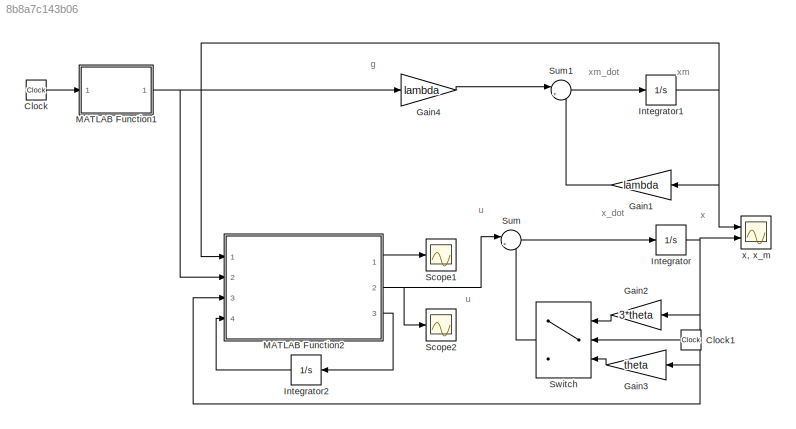
MODEL slx_8b8a7c143b06
KIND model
CONFIG AbsTol = auto
CONFIG EnableMultiTasking = off
CONFIG FixedStep = auto
CONFIG InitFcn = lambda = 5;\ntheta = 5;
CONFIG MaxStep = 0.01
CONFIG MinStep = auto
CONFIG RelTol = 1e-3
CONFIG SampleTimeConstraint = Unconstrained
CONFIG SolverName = VariableStepAuto
CONFIG StartTime = 0.0
CONFIG StopTime = 20
BLOCK [Clock] Clock
BLOCK [Clock] Clock1
  NameLocation = top
BLOCK [Gain] Gain1
  Gain = lambda
  NameLocation = top
BLOCK [Gain] Gain2
  Gain = 3*theta
  NameLocation = top
BLOCK [Gain] Gain3
  Gain = theta
  NameLocation = top
BLOCK [Gain] Gain4
  Gain = lambda
BLOCK [Integrator] Integrator
  Ports = [1, 1]
BLOCK [Integrator] Integrator1
  Ports = [1, 1]
BLOCK [Integrator] Integrator2
  NameLocation = top
  Ports = [1, 1]
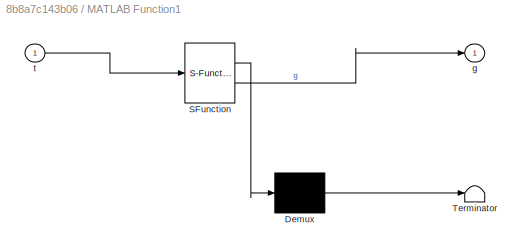
BLOCK [SubSystem] MATLAB Function1
  ErrorFcn = Stateflow.Translate.translate
  PermitHierarchicalResolution = ExplicitOnly
  Ports = [1, 1]
  RequestExecContextInheritance = off
  SFBlockType = MATLAB Function
  TreatAsAtomicUnit = on
BLOCK [Demux] MATLAB Function1/ Demux 
  Outputs = 1
  Ports = [1, 1]
BLOCK [S-Function] MATLAB Function1/ SFunction 
  EnableBusSupport = on
  FunctionName = sf_sfun
  PortCounts = [1 2]
  Ports = [1, 2]
  SFcnIsStateOwnerBlock = off
  SFunctionDeploymentMode = off
  Tag = Stateflow S-Function 1
BLOCK [Terminator] MATLAB Function1/ Terminator 
BLOCK [Outport] MATLAB Function1/g
BLOCK [Inport] MATLAB Function1/t
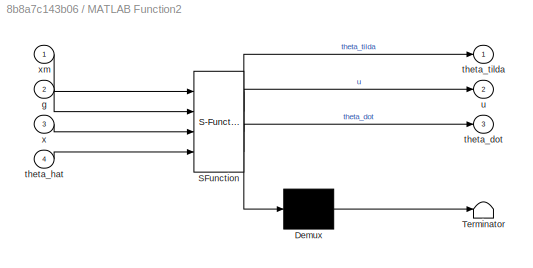
BLOCK [SubSystem] MATLAB Function2
  ErrorFcn = Stateflow.Translate.translate
  PermitHierarchicalResolution = ExplicitOnly
  Ports = [4, 3]
  RequestExecContextInheritance = off
  SFBlockType = MATLAB Function
  TreatAsAtomicUnit = on
BLOCK [Demux] MATLAB Function2/ Demux 
  Outputs = 1
  Ports = [1, 1]
BLOCK [S-Function] MATLAB Function2/ SFunction 
  EnableBusSupport = on
  FunctionName = sf_sfun
  Parameters = lambda,theta
  PortCounts = [4 4]
  Ports = [4, 4]
  SFcnIsStateOwnerBlock = off
  SFunctionDeploymentMode = off
  Tag = Stateflow S-Function 2
BLOCK [Terminator] MATLAB Function2/ Terminator 
BLOCK [Inport] MATLAB Function2/g
  Port = 2
BLOCK [Outport] MATLAB Function2/theta_dot
  Port = 3
BLOCK [Inport] MATLAB Function2/theta_hat
  Port = 4
BLOCK [Outport] MATLAB Function2/theta_tilda
BLOCK [Outport] MATLAB Function2/u
  Port = 2
BLOCK [Inport] MATLAB Function2/x
  Port = 3
BLOCK [Inport] MATLAB Function2/xm
BLOCK [Scope] Scope1
  Floating = off
  NumInputPorts = 1
  Ports = [1]
  ScopeSpecificationString = Simulink.scopes.TimeScopeBlockCfg('CurrentConfiguration', extmgr.ConfigurationSet(extmgr.Configuration('Core','General UI',true,'FigureColor',[0.8 0.8 0.8]),extmgr.Configuration('Core','Source UI',true),extmgr.Configuration('Sources','WiredSimulink',true,'DataLoggingVariableName','ScopeData1'),extmgr.Configuration('Visuals','Time Domain',true,'SerializedDisplays',{struct('MinYLimReal','-11.87494',...<+1556ch>
BLOCK [Scope] Scope2
  Floating = off
  NumInputPorts = 1
  Ports = [1]
  ScopeSpecificationString = Simulink.scopes.TimeScopeBlockCfg('CurrentConfiguration', extmgr.ConfigurationSet(extmgr.Configuration('Core','General UI',true,'FigureColor',[0.8 0.8 0.8]),extmgr.Configuration('Core','Source UI',true),extmgr.Configuration('Sources','WiredSimulink',true,'DataLoggingVariableName','ScopeData1'),extmgr.Configuration('Visuals','Time Domain',true,'SerializedDisplays',{struct('MinYLimReal','-30.30629',...<+1546ch>
BLOCK [Sum] Sum
  Inputs = |++
  Ports = [2, 1]
BLOCK [Sum] Sum1
  Inputs = |+-
  Ports = [2, 1]
BLOCK [Switch] Switch
  Criteria = u2 > Threshold
  InputSameDT = off
  NameLocation = top
  SaturateOnIntegerOverflow = off
  Threshold = 10
BLOCK [Scope] x, x_m
  Floating = off
  NumInputPorts = 2
  Ports = [2]
  ScopeSpecificationString = Simulink.scopes.TimeScopeBlockCfg('CurrentConfiguration', extmgr.ConfigurationSet(extmgr.Configuration('Core','General UI',true,'FigureColor',[0.8 0.8 0.8]),extmgr.Configuration('Core','Source UI',true),extmgr.Configuration('Sources','WiredSimulink',true,'DataLoggingVariableName','ScopeData2'),extmgr.Configuration('Visuals','Time Domain',true,'SerializedDisplays',{struct('MinYLimReal','-2.72928','...<+1548ch>
ANNOTATION (root): g
ANNOTATION (root): u
ANNOTATION (root): x
ANNOTATION (root): x_dot
ANNOTATION (root): xm
ANNOTATION (root): xm_dot
LINE Clock1:1 -> Switch:2
LINE Clock:1 -> MATLAB Function1:1
LINE Gain1:1 -> Sum1:2
LINE Gain2:1 -> Switch:1
LINE Gain3:1 -> Switch:3
LINE Gain4:1 -> Sum1:1
NET Integrator1:1 -> Gain1:1, MATLAB Function2:1, x, x_m:1
LINE Integrator2:1 -> MATLAB Function2:4
NET Integrator:1 -> Gain2:1, Gain3:1, MATLAB Function2:3, x, x_m:2
NET MATLAB Function1:1 -> Gain4:1, MATLAB Function2:2
LINE MATLAB Function2:1 -> Scope1:1
NET MATLAB Function2:2 -> Scope2:1, Sum:1
LINE MATLAB Function2:3 -> Integrator2:1
LINE Sum1:1 -> Integrator1:1
LINE Sum:1 -> Integrator:1
LINE Switch:1 -> Sum:2
note: NET lines group one-source signal fan-out (src -> all destinations, sorted); 1:1 wires keep LINE
CHART MATLAB Function1 states=1 transitions=1
  STATE_LABEL 'eML_blk_kernel()'
  STATE_LABEL 'SCRIPT:\nfunction g = fcn(t)\n\ng = 2*sin(5*t);\n'
CHART MATLAB Function2 states=1 transitions=1
  STATE_LABEL 'eML_blk_kernel()'
  STATE_LABEL 'SCRIPT:\nfunction [theta_tilda, u, theta_dot] = fcn(xm, g, x, theta_hat, lambda, theta)\n\ngamma = 100;\ne = xm - x;\ntheta_dot = -gamma*x*e;\nu = -theta_hat*x - lambda*x + lambda*g;\n\ntheta_tilda = theta - theta_hat;\n'
CHART  states=0 transitions=0
CHART  states=0 transitions=0
